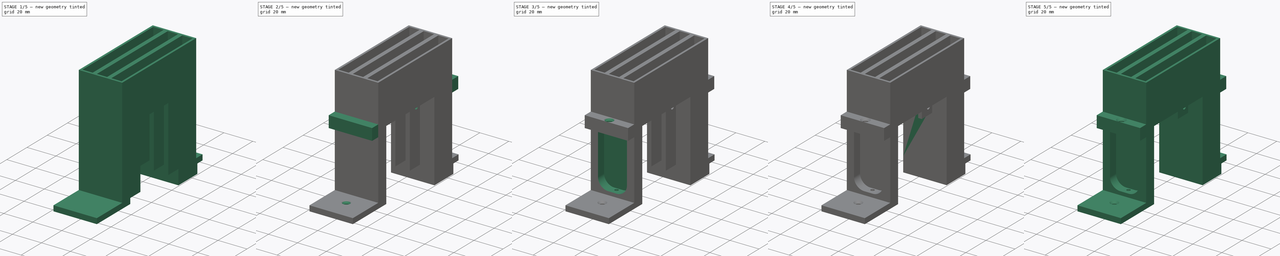
[diagram: build sequence overview — one tinted view per stage of 5, left to right]
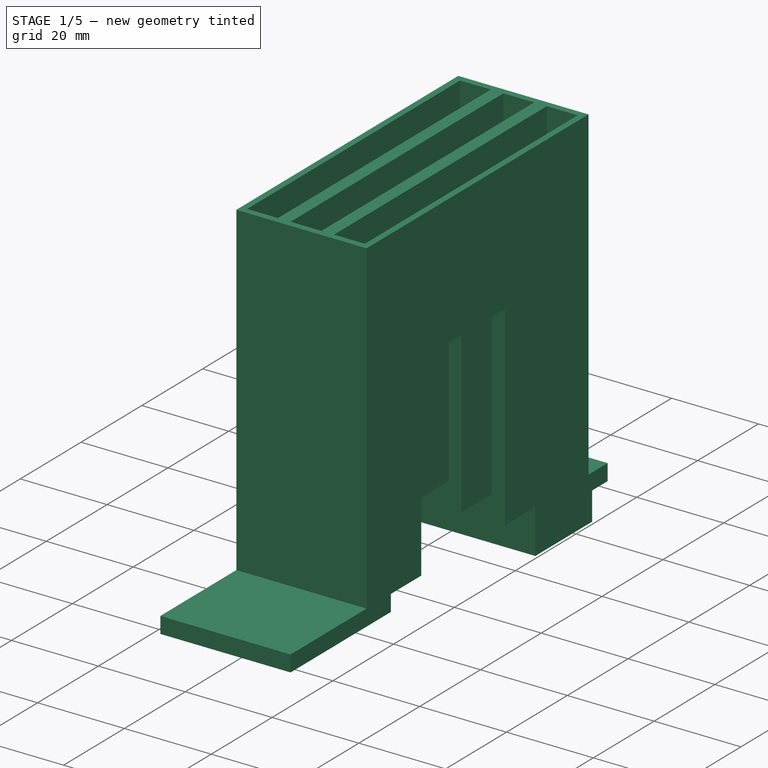
[diagram: stage 1 of 5 — iso view after this stage's code; geometry added in this stage tinted green]
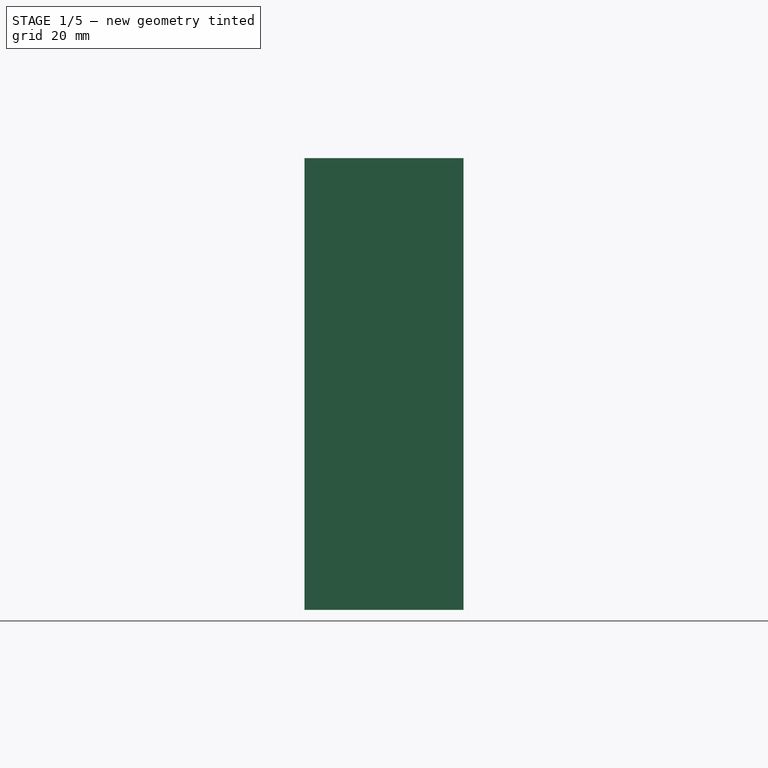
[diagram: stage 1 of 5 — front view after this stage's code; geometry added in this stage tinted green]
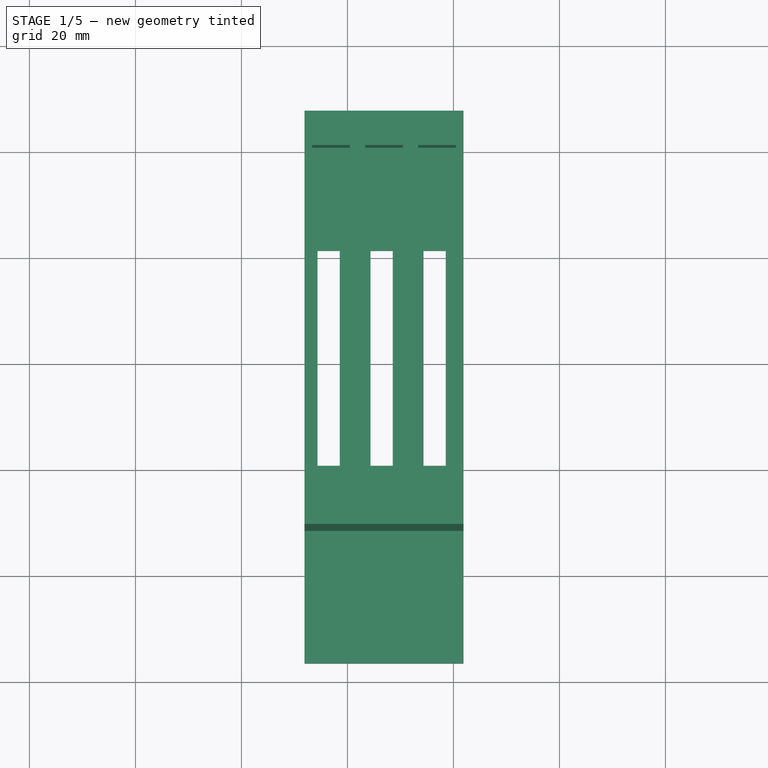
[diagram: stage 1 of 5 — top view after this stage's code; geometry added in this stage tinted green]
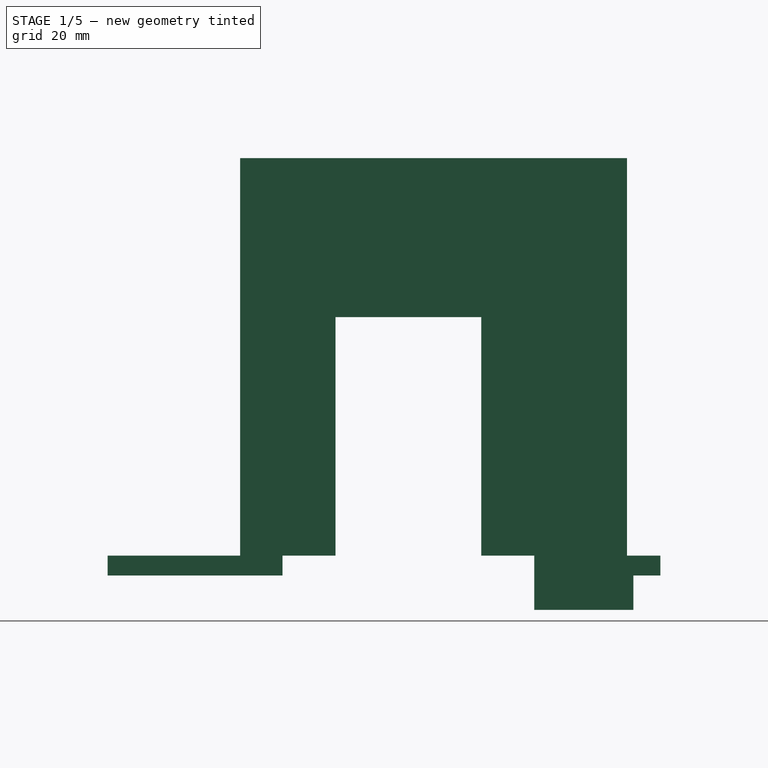
[diagram: stage 1 of 5 — right view after this stage's code; geometry added in this stage tinted green]
FCSTD DOCUMENT  (FreeCAD 1.0R39109 (Git))
Label: ssd holder
License: All rights reserved
LicenseURL: https://en.wikipedia.org/wiki/All_rights_reserved
objects: Sketcher::SketchObject×19, PartDesign::Pocket×7, PartDesign::Hole×6, Part::FeaturePython×6, PartDesign::Pad×5, PartDesign::Fillet×2, PartDesign::LinearPattern×1, PartDesign::Body×1, Part::Extrusion×1, App::DocumentObjectGroup×1
note: 108 computed .brp shape members not serialized (recipe doc carries the construction recipe); baked Part::Feature solids carry a one-line shape summary decoded from their .brp

FEATURE [Sketcher::SketchObject] Sketch
  ArcFitTolerance = 1e-06
  AttachmentSupport = -> [XY_Plane]
  FullyConstrained = false
  MakeInternals = false
  MapMode = 5
  sketch-geometry (8):
    g0: LineSegment StartX=-26.6478 StartY=159.895 StartZ=0 EndX=-26.6478 EndY=89.8951 EndZ=0
    g1: LineSegment StartX=-26.6478 StartY=89.8951 StartZ=0 EndX=-19.5478 EndY=89.8951 EndZ=0
    g2: LineSegment StartX=-19.5478 StartY=89.8951 StartZ=0 EndX=-19.5478 EndY=159.895 EndZ=0
    g3: LineSegment StartX=-19.5478 StartY=159.895 StartZ=0 EndX=-26.6478 EndY=159.895 EndZ=0
    g4: LineSegment StartX=-25.6478 StartY=140.395 StartZ=0 EndX=-25.6478 EndY=99.8951 EndZ=0
    g5: LineSegment StartX=-25.6478 StartY=99.8951 StartZ=0 EndX=-21.4478 EndY=99.8951 EndZ=0
    g6: LineSegment StartX=-21.4478 StartY=99.8951 StartZ=0 EndX=-21.4478 EndY=140.395 EndZ=0
    g7: LineSegment StartX=-21.4478 StartY=140.395 StartZ=0 EndX=-25.6478 EndY=140.395 EndZ=0
  constraints (22):
    c: Coincident(g0,g1)
    c: Coincident(g1,g2)
    c: Coincident(g2,g3)
    c: Coincident(g3,g0)
    c: Vertical(g0)
    c: Vertical(g2)
    c: Horizontal(g1)
    c: Horizontal(g3)
    c: DistanceY(g1,g2) = 70
    c: DistanceX(g0,g1) = 7.1
    c: Coincident(g4,g5)
    c: Coincident(g5,g6)
    c: Coincident(g6,g7)
    c: Coincident(g7,g4)
    c: Vertical(g4)
    c: Vertical(g6)
    c: Horizontal(g5)
    c: Horizontal(g7)
    c: DistanceX(g4,g5) = 4.2
    c: DistanceY(g5,g6) = 40.5
    c: Distance(g1,g5) = 10
    c: Distance(g4,g0) = 1
FEATURE [PartDesign::Pad] Pad  label="base"
  Direction = (0,0,1)
  Length = 0.5
  Length2 = 10
  Profile = -> Sketch
  ReferenceAxis = -> Sketch [N_Axis]
  Refine = true
  Suppressed = false
  Type = 0
FEATURE [Sketcher::SketchObject] Sketch001
  ArcFitTolerance = 1e-06
  AttachmentSupport = -> [Pad]
  ExternalGeometry = -> [Pad]
  FullyConstrained = true
  MakeInternals = false
  MapMode = 5
  Placement = pos=(0,0,0) rot=(1,0,0;3.14159rad)
  expr: Constraints[20] = 1.5
  expr: Constraints[21] = 1.5
  sketch-geometry (8):
    g0: LineSegment StartX=-28.0978 StartY=-88.3951 StartZ=0 EndX=-28.0978 EndY=-161.395 EndZ=0
    g1: LineSegment StartX=-28.0978 StartY=-161.395 StartZ=0 EndX=-18.0978 EndY=-161.395 EndZ=0
    g2: LineSegment StartX=-18.0978 StartY=-161.395 StartZ=0 EndX=-18.0978 EndY=-88.3951 EndZ=0
    g3: LineSegment StartX=-18.0978 StartY=-88.3951 StartZ=0 EndX=-28.0978 EndY=-88.3951 EndZ=0
    g4: LineSegment StartX=-26.6478 StartY=-89.8951 StartZ=0 EndX=-26.6478 EndY=-159.895 EndZ=0
    g5: LineSegment StartX=-26.6478 StartY=-159.895 StartZ=0 EndX=-19.5478 EndY=-159.895 EndZ=0
    g6: LineSegment StartX=-19.5478 StartY=-159.895 StartZ=0 EndX=-19.5478 EndY=-89.8951 EndZ=0
    g7: LineSegment StartX=-19.5478 StartY=-89.8951 StartZ=0 EndX=-26.6478 EndY=-89.8951 EndZ=0
  constraints (22):
    c: Coincident(g0,g1)
    c: Coincident(g1,g2)
    c: Coincident(g2,g3)
    c: Coincident(g3,g0)
    c: Vertical(g0)
    c: Vertical(g2)
    c: Horizontal(g1)
    c: Horizontal(g3)
    c: Coincident(g4,g5)
    c: Coincident(g5,g6)
    c: Coincident(g6,g7)
    c: Coincident(g7,g4)
    c: Vertical(g4)
    c: Vertical(g6)
    c: Horizontal(g5)
    c: Horizontal(g7)
    c: Coincident(g4,g-4)
    c: Coincident(g5,g-6)
    c: DistanceX(g6,g2) = 1.45
    c: DistanceX(g0,g4) = 1.45
    c: DistanceY(g1,g5) = 1.5
    c: DistanceY(g4,g0) = 1.5
FEATURE [PartDesign::Pad] Pad001  label="walls"
  BaseFeature = -> Pad
  Direction = (0,0,-1)
  Length = 30
  Length2 = 0
  Profile = -> Sketch001
  ReferenceAxis = -> Sketch001 [N_Axis]
  Refine = true
  Reversed = true
  Suppressed = false
  Type = 0
FEATURE [Sketcher::SketchObject] Sketch002
  ArcFitTolerance = 1e-06
  AttachmentSupport = -> [Pad001]
  ExternalGeometry = -> [Pad001]
  FullyConstrained = true
  MakeInternals = false
  MapMode = 5
  Placement = pos=(0,0,0) rot=(1,0,0;3.14159rad)
  sketch-geometry (12):
    g0: LineSegment StartX=-28.0978 StartY=-88.3951 StartZ=0 EndX=-28.0978 EndY=-96.3951 EndZ=0
    g1: LineSegment StartX=-28.0978 StartY=-96.3951 StartZ=0 EndX=-20.5978 EndY=-96.3951 EndZ=0
    g2: LineSegment StartX=-20.5978 StartY=-96.3951 StartZ=0 EndX=-20.5978 EndY=-106.395 EndZ=0
    g3: LineSegment StartX=-20.5978 StartY=-106.395 StartZ=0 EndX=-18.0978 EndY=-106.395 EndZ=0
    g4: LineSegment StartX=-18.0978 StartY=-106.395 StartZ=0 EndX=-18.0978 EndY=-88.3951 EndZ=0
    g5: LineSegment StartX=-18.0978 StartY=-88.3951 StartZ=0 EndX=-28.0978 EndY=-88.3951 EndZ=0
    g6: LineSegment StartX=-28.0978 StartY=-161.395 StartZ=0 EndX=-18.0978 EndY=-161.395 EndZ=0
    g7: LineSegment StartX=-18.0978 StartY=-161.395 StartZ=0 EndX=-18.0978 EndY=-133.895 EndZ=0
    g8: LineSegment StartX=-18.0978 StartY=-133.895 StartZ=0 EndX=-20.5978 EndY=-133.895 EndZ=0
    g9: LineSegment StartX=-20.5978 StartY=-133.895 StartZ=0 EndX=-20.5978 EndY=-143.895 EndZ=0
    g10: LineSegment StartX=-20.5978 StartY=-143.895 StartZ=0 EndX=-28.0978 EndY=-143.895 EndZ=0
    g11: LineSegment StartX=-28.0978 StartY=-143.895 StartZ=0 EndX=-28.0978 EndY=-161.395 EndZ=0
  constraints (32):
    c: Coincident(g-4,g0)
    c: PointOnObject(g0,g-4)
    c: Coincident(g0,g1)
    c: Horizontal(g1)
    c: Coincident(g1,g2)
    c: Vertical(g2)
    c: Coincident(g2,g3)
    c: PointOnObject(g3,g-5)
    c: Horizontal(g3)
    c: Coincident(g3,g4)
    c: Coincident(g4,g-5)
    c: Coincident(g4,g5)
    c: Coincident(g5,g0)
    c: DistanceX(g1,g1) = 7.5
    c: Distance(g1,g2) = 10
    c: DistanceY(g-7,g0) = 3.5
    c: Coincident(g-6,g6)
    c: Coincident(g6,g-6)
    c: Coincident(g6,g7)
    c: PointOnObject(g7,g-5)
    c: Coincident(g7,g8)
    c: Coincident(g8,g9)
    c: Vertical(g9)
    c: Coincident(g9,g10)
    c: PointOnObject(g10,g-4)
    c: Horizontal(g10)
    c: Coincident(g10,g11)
    c: Coincident(g11,g6)
    c: Horizontal(g8)
    c: DistanceY(g10,g-8) = 3.5
    c: DistanceX(g10,g9) = 7.5
    c: DistanceY(g9,g7) = 10
FEATURE [PartDesign::Pad] Pad002  label="feet"
  BaseFeature = -> Pad001
  Direction = (0,0,-1)
  Length = 45
  Length2 = 10
  Profile = -> Sketch002
  ReferenceAxis = -> Sketch002 [N_Axis]
  Refine = true
  Suppressed = false
  Type = 0
FEATURE [Sketcher::SketchObject] Sketch003
  ArcFitTolerance = 1e-06
  AttachmentSupport = -> [Pad002]
  ExternalGeometry = -> [Pad002]
  FullyConstrained = true
  MakeInternals = false
  MapMode = 5
  Placement = pos=(-20.5978,0,0) rot=(0.57735,-0.57735,-0.57735;2.0944rad)
  sketch-geometry (2):
    g0: Circle CenterX=-140.395 CenterY=-7.7 CenterZ=0 NormalX=0 NormalY=0 NormalZ=1 AngleXU=0 Radius=1.25
    g1: Circle CenterX=-99.8951 CenterY=-7.7 CenterZ=0 NormalX=0 NormalY=0 NormalZ=1 AngleXU=0 Radius=1.25
  constraints (6):
    c: Diameter(g0) = 2.5
    c: Diameter(g1) = 2.5
    c: DistanceX(g-3,g0) = 3.5
    c: Distance(g1,g-4) = 3.5
    c: DistanceY(g0,g-6) = 7.7
    c: DistanceY(g1,g-5) = 7.7
FEATURE [PartDesign::LinearPattern] LinearPattern
  BaseFeature = -> Pad002
  Direction = -> X_Axis
  Length = 20
  Mode = 0
  Occurrences = 3
  Offset = 10
  Refine = true
  Suppressed = false
  TransformMode = 1
FEATURE [Sketcher::SketchObject] Sketch004
  ArcFitTolerance = 1e-06
  AttachmentSupport = -> [LinearPattern]
  ExternalGeometry = -> [LinearPattern]
  FullyConstrained = true
  MakeInternals = false
  MapMode = 5
  Placement = pos=(-28.0978,0,0) rot=(0.57735,-0.57735,-0.57735;2.0944rad)
  expr: Constraints[24] = 17.5 + 6.3
  expr: Constraints[8] = 8 + 25
  sketch-geometry (11):
    g0: LineSegment StartX=-96.3951 StartY=-45 StartZ=0 EndX=-63.3951 EndY=-45 EndZ=0
    g1: LineSegment StartX=-63.3951 StartY=-45 StartZ=0 EndX=-63.3951 EndY=-48.75 EndZ=0
    g2: LineSegment StartX=-63.3951 StartY=-48.75 StartZ=0 EndX=-96.3951 EndY=-48.75 EndZ=0
    g3: LineSegment StartX=-96.3951 StartY=-48.75 StartZ=0 EndX=-96.3951 EndY=-45 EndZ=0
    g4: LineSegment StartX=-143.895 StartY=-45 StartZ=0 EndX=-161.395 EndY=-45 EndZ=0
    g5: LineSegment StartX=-161.395 StartY=-45 StartZ=0 EndX=-167.695 EndY=-45 EndZ=0
    g6: LineSegment StartX=-167.695 StartY=-45 StartZ=0 EndX=-167.695 EndY=-48.75 EndZ=0
    g7: LineSegment StartX=-167.695 StartY=-48.75 StartZ=0 EndX=-162.595 EndY=-48.75 EndZ=0
    g8: LineSegment StartX=-162.595 StartY=-48.75 StartZ=0 EndX=-162.595 EndY=-55.25 EndZ=0
    g9: LineSegment StartX=-162.595 StartY=-55.25 StartZ=0 EndX=-143.895 EndY=-55.25 EndZ=0
    g10: LineSegment StartX=-143.895 StartY=-55.25 StartZ=0 EndX=-143.895 EndY=-45 EndZ=0
  constraints (30):
    c: Coincident(g-3,g0)
    c: Horizontal(g0)
    c: Coincident(g0,g1)
    c: Coincident(g1,g2)
    c: Horizontal(g2)
    c: Coincident(g3,g0)
    c: Vertical(g3)
    c: Vertical(g1)
    c: DistanceX(g0,g0) = 33
    c: Coincident(g-4,g4)
    c: Coincident(g4,g-4)
    c: Coincident(g4,g5)
    c: Horizontal(g5)
    c: Coincident(g5,g6)
    c: Coincident(g6,g7)
    c: Horizontal(g7)
    c: Coincident(g7,g8)
    c: Coincident(g8,g9)
    c: Horizontal(g9)
    c: Coincident(g9,g10)
    c: Coincident(g10,g4)
    c: Vertical(g10)
    c: Vertical(g8)
    c: Vertical(g6)
    c: DistanceX(g5,g4) = 23.8
    c: DistanceX(g6,g7) = 5.1
    c: DistanceY(g9,g4) = 10.25
    c: DistanceY(g8,g7) = 6.5
    c: Coincident(g2,g3)
    c: DistanceY(g1,g0) = 3.75
FEATURE [PartDesign::Pad] Pad003  label="bottom screw holes flange"
  BaseFeature = -> LinearPattern
  Direction = (-1,0,0)
  Length = 10
  Length2 = 10
  Profile = -> Sketch004
  ReferenceAxis = -> Sketch004 [N_Axis]
  Refine = true
  Reversed = true
  Suppressed = false
  Type = 3
  UpToFace = -> LinearPattern [Face1]
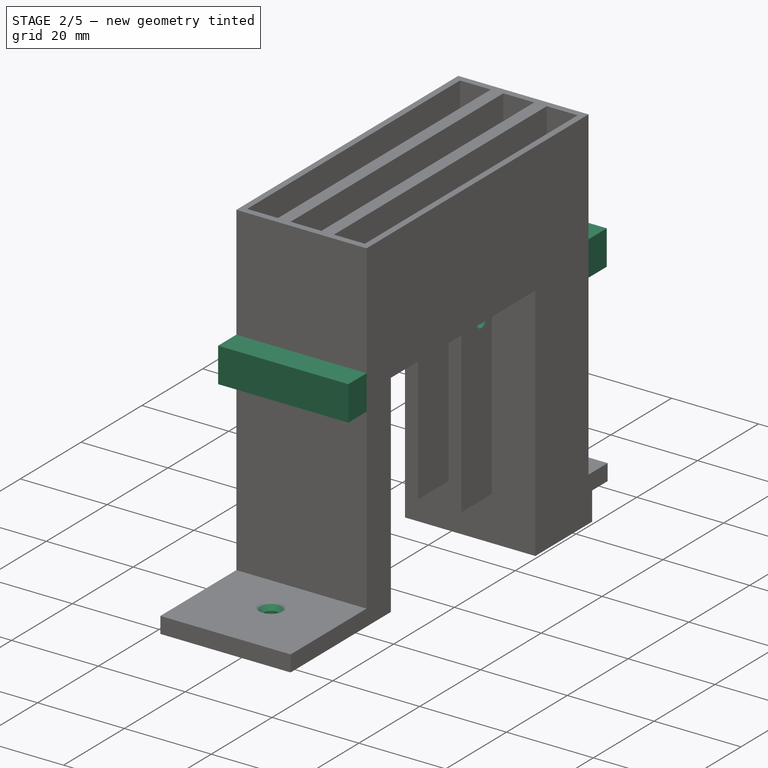
[diagram: stage 2 of 5 — iso view after this stage's code; geometry added in this stage tinted green]
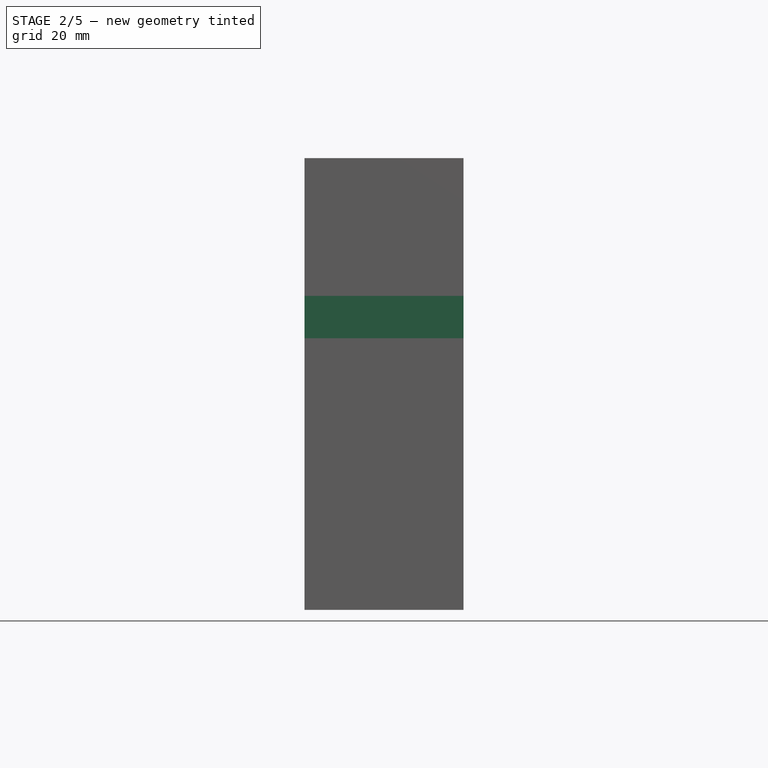
[diagram: stage 2 of 5 — front view after this stage's code; geometry added in this stage tinted green]
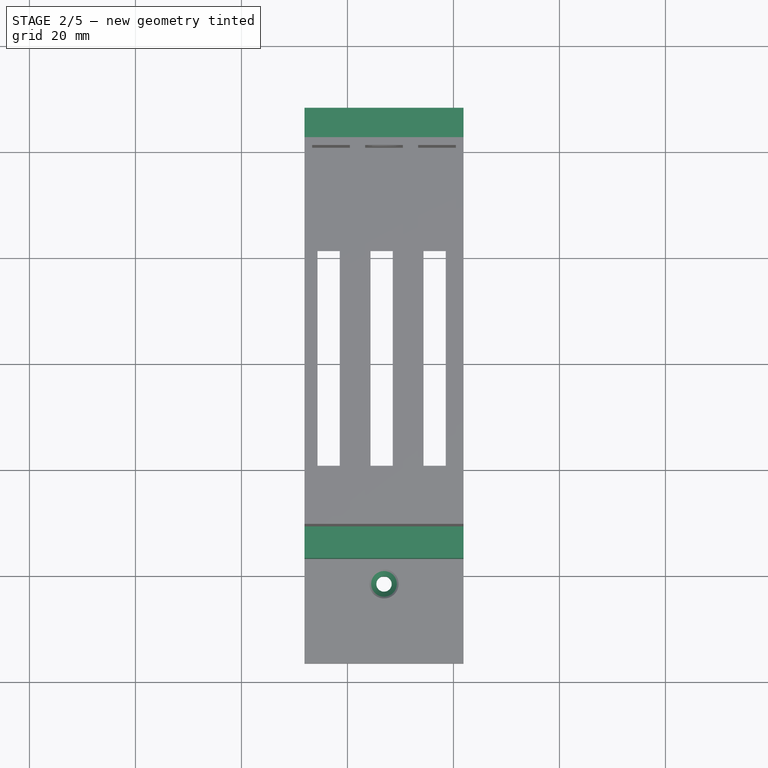
[diagram: stage 2 of 5 — top view after this stage's code; geometry added in this stage tinted green]
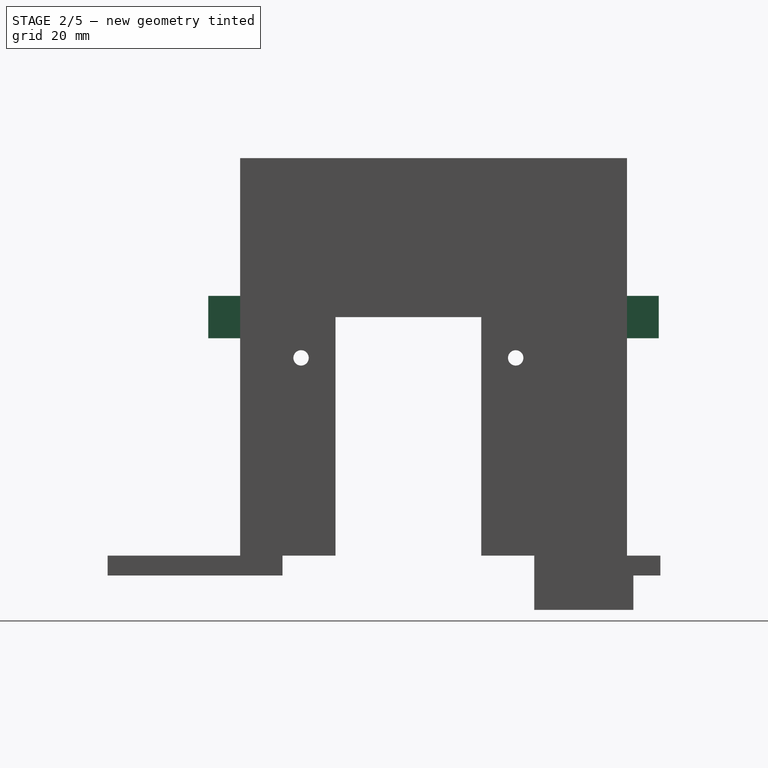
[diagram: stage 2 of 5 — right view after this stage's code; geometry added in this stage tinted green]
FEATURE [Sketcher::SketchObject] Sketch005
  ArcFitTolerance = 1e-06
  AttachmentSupport = -> [Pad003]
  ExternalGeometry = -> [Pad003]
  FullyConstrained = true
  MakeInternals = false
  MapMode = 5
  Placement = pos=(0,0,-45) rot=(0,0,1;0rad)
  sketch-geometry (3):
    g0: Circle CenterX=-13.0978 CenterY=165.195 CenterZ=0 NormalX=0 NormalY=0 NormalZ=1 AngleXU=0 Radius=1.25
    g1: Circle CenterX=-13.0978 CenterY=78.3951 CenterZ=0 NormalX=0 NormalY=0 NormalZ=1 AngleXU=0 Radius=1.25
    g2: GeomPoint [constr] X=-13.0978 Y=63.3951 Z=0
  constraints (7):
    c: Diameter(g0) = 2.5
    c: Diameter(g1) = 2.5
    c: Symmetric(g-3,g-3,g2)
    c: Vertical(g1,g2)
    c: DistanceY(g2,g1) = 15
    c: Distance(g0,g-4) = 2.5
    c: Vertical(g0,g1)
FEATURE [PartDesign::Hole] Hole001  label="bottom screw holes"
  BaseFeature = -> Pad003
  CustomThreadClearance = 0
  Depth = 255.8
  DepthType = 1
  Diameter = 2.9
  DrillForDepth = false
  DrillPoint = 1
  DrillPointAngle = 118
  HoleCutCountersinkAngle = 90
  HoleCutCustomValues = false
  HoleCutDepth = 0
  HoleCutDiameter = 5.5
  HoleCutType = 2
  ModelThread = false
  Profile = -> Sketch005
  Refine = true
  Suppressed = false
  Tapered = false
  TaperedAngle = 90
  ThreadClass = 0
  ThreadDepth = 255.8
  ThreadDepthType = 0
  ThreadDirection = 0
  ThreadFit = 0
  ThreadSize = 8
  ThreadType = 1
  Threaded = false
  UseCustomThreadClearance = false
FEATURE [Sketcher::SketchObject] Sketch006
  ArcFitTolerance = 1e-06
  AttachmentSupport = -> [Hole001]
  ExternalGeometry = -> [Hole001]
  FullyConstrained = true
  MakeInternals = false
  MapMode = 5
  Placement = pos=(0,159.895,0) rot=(1,0,0;1.5708rad)
  sketch-geometry (2):
    g0: Circle CenterX=-13.0978 CenterY=21 CenterZ=0 NormalX=0 NormalY=0 NormalZ=1 AngleXU=0 Radius=1.5
    g1: GeomPoint [constr] X=-13.0978 Y=30 Z=0
  constraints (4):
    c: Diameter(g0) = 3
    c: Symmetric(g-3,g-3,g1)
    c: Vertical(g0,g1)
    c: Distance(g0,g-3) = 9
FEATURE [PartDesign::Hole] Hole002  label="fan carrier hole"
  BaseFeature = -> Hole001
  CustomThreadClearance = 0
  Depth = 25
  DepthType = 0
  Diameter = 3.4
  DrillForDepth = false
  DrillPoint = 1
  DrillPointAngle = 118
  HoleCutCountersinkAngle = 90
  HoleCutCustomValues = false
  HoleCutDepth = 0
  HoleCutDiameter = 6.1
  HoleCutType = 2
  ModelThread = false
  Profile = -> Sketch006
  Refine = true
  Suppressed = false
  Tapered = false
  TaperedAngle = 90
  ThreadClass = 0
  ThreadDepth = 25
  ThreadDepthType = 0
  ThreadDirection = 0
  ThreadFit = 0
  ThreadSize = 9
  ThreadType = 1
  Threaded = false
  UseCustomThreadClearance = false
FEATURE [PartDesign::Hole] Hole  label="connector mount holes"
  BaseFeature = -> Hole002
  CustomThreadClearance = 0
  Depth = 255.8
  DepthType = 1
  Diameter = 2.9
  DrillForDepth = false
  DrillPoint = 1
  DrillPointAngle = 118
  HoleCutCountersinkAngle = 90
  HoleCutCustomValues = false
  HoleCutDepth = 0
  HoleCutDiameter = 5.5
  HoleCutType = 0
  ModelThread = false
  Profile = -> Sketch003
  Refine = true
  Suppressed = false
  Tapered = false
  TaperedAngle = 90
  ThreadClass = 0
  ThreadDepth = 255.8
  ThreadDepthType = 0
  ThreadDirection = 0
  ThreadFit = 0
  ThreadSize = 8
  ThreadType = 1
  Threaded = false
  UseCustomThreadClearance = false
FEATURE [Sketcher::SketchObject] Sketch007
  ArcFitTolerance = 1e-06
  AttachmentSupport = -> [Hole]
  ExternalGeometry = -> [Hole]
  FullyConstrained = true
  MakeInternals = false
  MapMode = 5
  Placement = pos=(1.9022,0,0) rot=(0.57735,0.57735,0.57735;2.0944rad)
  sketch-geometry (8):
    g0: LineSegment StartX=96.3951 StartY=0 StartZ=0 EndX=96.3951 EndY=-45 EndZ=0
    g1: LineSegment StartX=96.3951 StartY=-45 StartZ=0 EndX=106.395 EndY=-45 EndZ=0
    g2: LineSegment StartX=106.395 StartY=-45 StartZ=0 EndX=106.395 EndY=0 EndZ=0
    g3: LineSegment StartX=106.395 StartY=0 StartZ=0 EndX=96.3951 EndY=0 EndZ=0
    g4: LineSegment StartX=143.895 StartY=0 StartZ=0 EndX=133.895 EndY=0 EndZ=0
    g5: LineSegment StartX=133.895 StartY=0 StartZ=0 EndX=133.895 EndY=-45 EndZ=0
    g6: LineSegment StartX=133.895 StartY=-45 StartZ=0 EndX=143.895 EndY=-45 EndZ=0
    g7: LineSegment StartX=143.895 StartY=-45 StartZ=0 EndX=143.895 EndY=0 EndZ=0
  constraints (20):
    c: Coincident(g0,g1)
    c: Coincident(g1,g2)
    c: Coincident(g2,g3)
    c: Coincident(g3,g0)
    c: Vertical(g0)
    c: Vertical(g2)
    c: Horizontal(g1)
    c: Horizontal(g3)
    c: Coincident(g0,g-3)
    c: Coincident(g1,g-4)
    c: Coincident(g4,g5)
    c: Coincident(g5,g6)
    c: Coincident(g6,g7)
    c: Coincident(g7,g4)
    c: Horizontal(g4)
    c: Horizontal(g6)
    c: Vertical(g5)
    c: Vertical(g7)
    c: Coincident(g4,g-6)
    c: Coincident(g5,g-5)
FEATURE [PartDesign::Pocket] Pocket
  BaseFeature = -> Hole
  Direction = (-1,0,0)
  Length = 2.5
  Length2 = 5
  Profile = -> Sketch007
  ReferenceAxis = -> Sketch007 [N_Axis]
  Refine = true
  Suppressed = false
  Type = 0
FEATURE [Sketcher::SketchObject] Sketch011
  ArcFitTolerance = 1e-06
  AttachmentSupport = -> [Pocket]
  ExternalGeometry = -> [Pocket]
  FullyConstrained = true
  MakeInternals = false
  MapMode = 5
  Placement = pos=(0,0,-48.75) rot=(1,0,0;3.14159rad)
  sketch-geometry (5):
    g0: LineSegment StartX=-18.0978 StartY=-96.3951 StartZ=0 EndX=-8.0978 EndY=-96.3951 EndZ=0
    g1: LineSegment StartX=-8.0978 StartY=-96.3951 StartZ=0 EndX=-8.0978 EndY=-86.3951 EndZ=0
    g2: LineSegment StartX=-8.0978 StartY=-86.3951 StartZ=0 EndX=-18.0978 EndY=-86.3951 EndZ=0
    g3: LineSegment StartX=-18.0978 StartY=-86.3951 StartZ=0 EndX=-18.0978 EndY=-96.3951 EndZ=0
    g4: GeomPoint [constr] X=-13.0978 Y=-96.3951 Z=0
  constraints (12):
    c: Coincident(g0,g1)
    c: Coincident(g1,g2)
    c: Coincident(g2,g3)
    c: Coincident(g3,g0)
    c: Horizontal(g0)
    c: Horizontal(g2)
    c: Vertical(g1)
    c: Vertical(g3)
    c: Equal(g3,g2)
    c: DistanceX(g2,g2) = 10
    c: Symmetric(g-4,g-4,g4)
    c: Symmetric(g0,g0,g4)
FEATURE [PartDesign::Pocket] Pocket001  label="screw head pocket"
  BaseFeature = -> Pocket
  Direction = (0,0,1)
  Length = 1.1
  Length2 = 5
  Profile = -> Sketch011
  ReferenceAxis = -> Sketch011 [N_Axis]
  Refine = true
  Suppressed = false
  Type = 0
FEATURE [Sketcher::SketchObject] Sketch012
  ArcFitTolerance = 1e-06
  AttachmentSupport = -> [Pocket001]
  ExternalGeometry = -> [Pocket001]
  FullyConstrained = true
  MakeInternals = false
  MapMode = 5
  Placement = pos=(-28.0978,0,0) rot=(0.57735,-0.57735,-0.57735;2.0944rad)
  sketch-geometry (10):
    g0: LineSegment StartX=-161.395 StartY=4 StartZ=0 EndX=-167.395 EndY=4 EndZ=0
    g1: LineSegment StartX=-167.395 StartY=4 StartZ=0 EndX=-167.395 EndY=-4 EndZ=0
    g2: LineSegment StartX=-167.395 StartY=-4 StartZ=0 EndX=-161.395 EndY=-4 EndZ=0
    g3: LineSegment StartX=-161.395 StartY=-4 StartZ=0 EndX=-161.395 EndY=4 EndZ=0
    g4: LineSegment StartX=-88.3951 StartY=4 StartZ=0 EndX=-88.3951 EndY=-4 EndZ=0
    g5: LineSegment StartX=-88.3951 StartY=-4 StartZ=0 EndX=-82.3951 EndY=-4 EndZ=0
    g6: LineSegment StartX=-82.3951 StartY=-4 StartZ=0 EndX=-82.3951 EndY=4 EndZ=0
    g7: LineSegment StartX=-82.3951 StartY=4 StartZ=0 EndX=-88.3951 EndY=4 EndZ=0
    g8: GeomPoint [constr] X=-88.3951 Y=0 Z=0
    g9: GeomPoint [constr] X=-161.395 Y=0 Z=0
  constraints (26):
    c: Coincident(g0,g1)
    c: Coincident(g1,g2)
    c: Coincident(g2,g3)
    c: Coincident(g3,g0)
    c: Horizontal(g0)
    c: Horizontal(g2)
    c: Vertical(g1)
    c: Vertical(g3)
    c: Coincident(g4,g5)
    c: Coincident(g5,g6)
    c: Coincident(g6,g7)
    c: Coincident(g7,g4)
    c: Vertical(g4)
    c: Vertical(g6)
    c: Horizontal(g5)
    c: Horizontal(g7)
    c: Equal(g1,g6)
    c: Equal(g5,g2)
    c: PointOnObject(g0,g-5)
    c: PointOnObject(g4,g-3)
    c: PointOnObject(g8,g-1)
    c: PointOnObject(g9,g-1)
    c: Symmetric(g0,g2,g9)
    c: Symmetric(g4,g4,g8)
    c: Distance(g6,g6) = 8
    c: DistanceX(g5,g5) = 6
FEATURE [PartDesign::Pad] Pad004
  BaseFeature = -> Pocket001
  Direction = (-1,0,0)
  Length = 10
  Length2 = 10
  Profile = -> Sketch012
  ReferenceAxis = -> Sketch012 [N_Axis]
  Refine = true
  Reversed = true
  Suppressed = false
  Type = 1
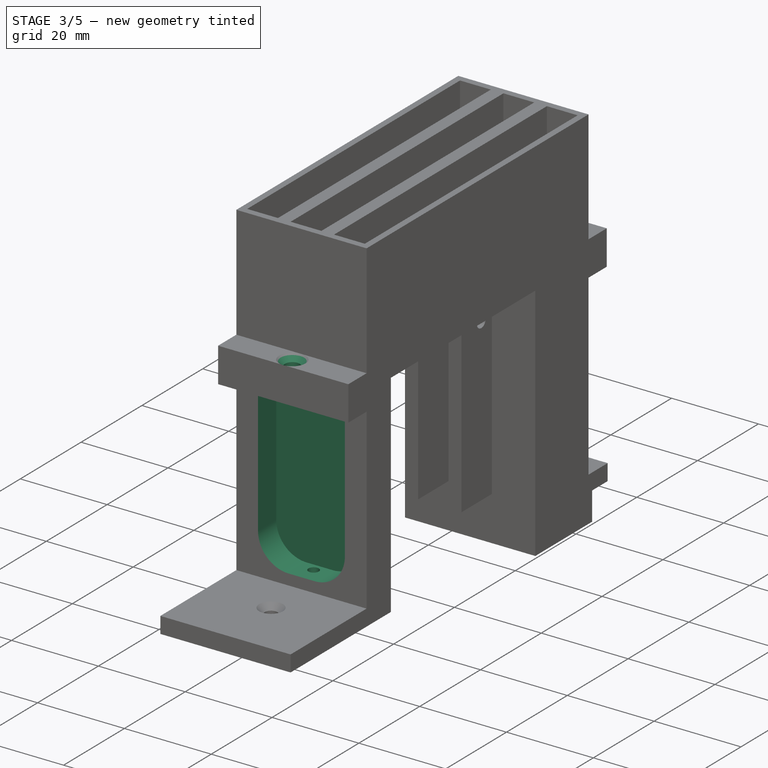
[diagram: stage 3 of 5 — iso view after this stage's code; geometry added in this stage tinted green]
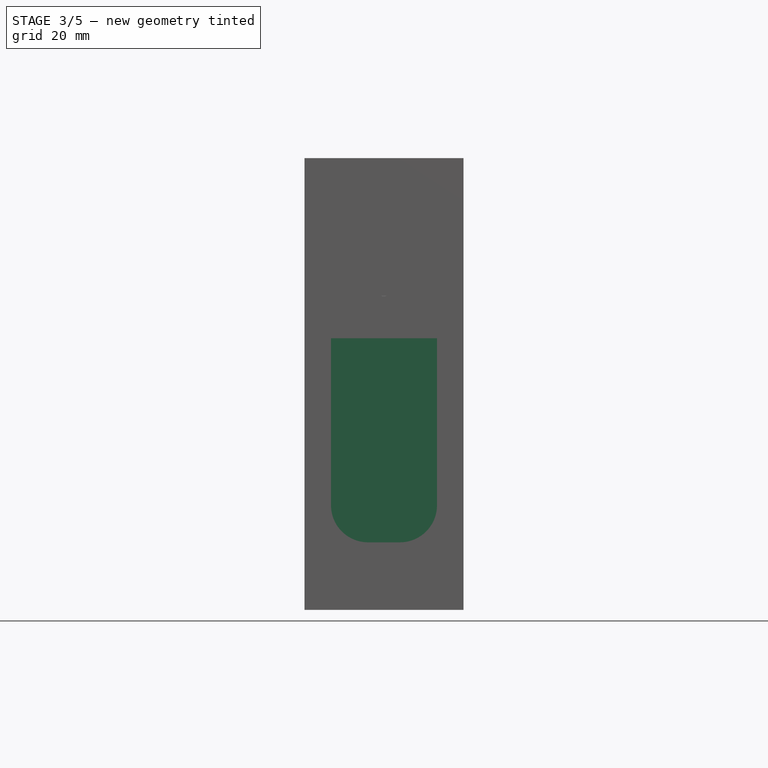
[diagram: stage 3 of 5 — front view after this stage's code; geometry added in this stage tinted green]
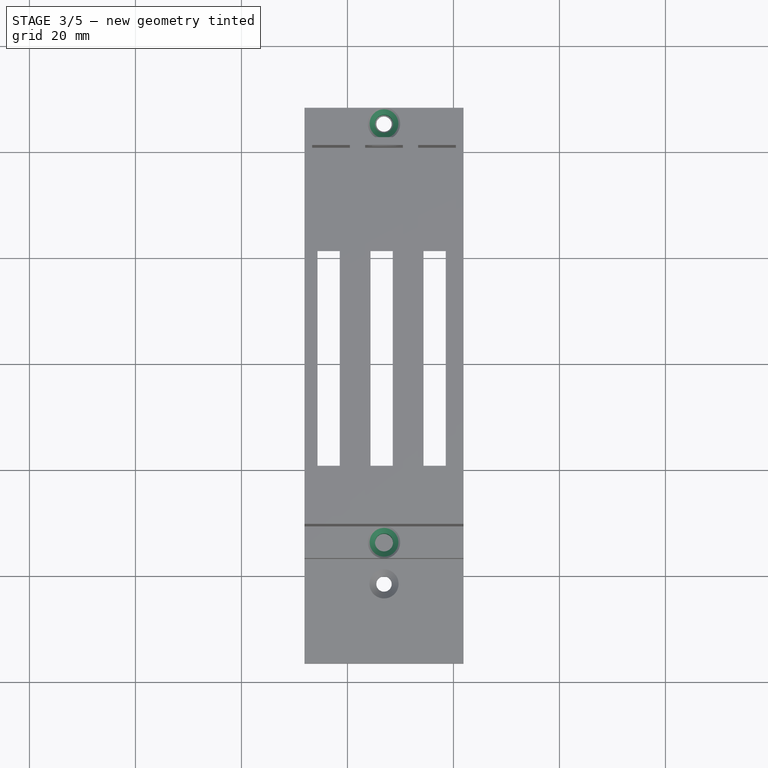
[diagram: stage 3 of 5 — top view after this stage's code; geometry added in this stage tinted green]
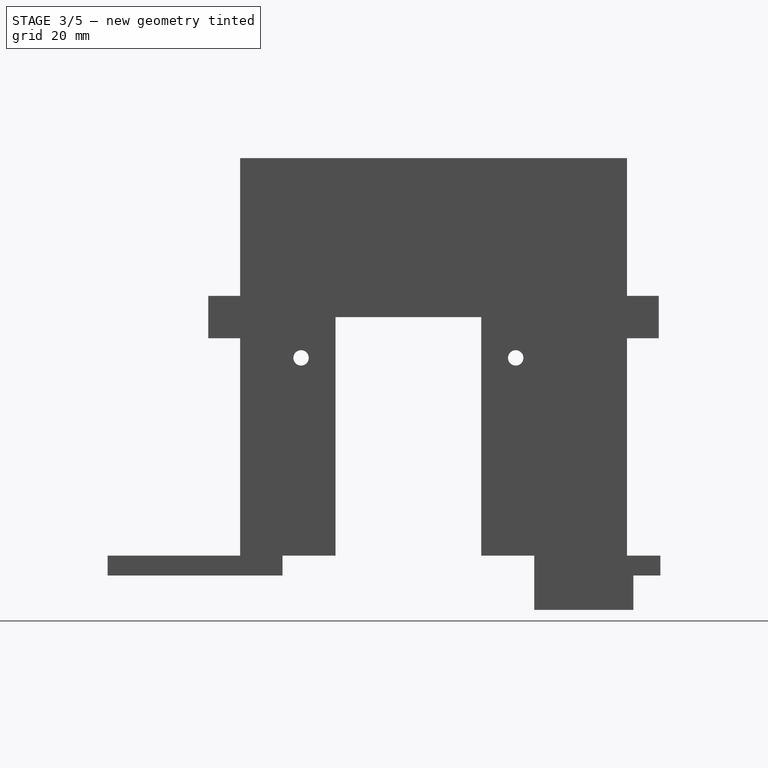
[diagram: stage 3 of 5 — right view after this stage's code; geometry added in this stage tinted green]
FEATURE [Sketcher::SketchObject] Sketch013
  ArcFitTolerance = 1e-06
  AttachmentSupport = -> [Pad004]
  ExternalGeometry = -> [Pad004]
  FullyConstrained = true
  MakeInternals = false
  MapMode = 5
  Placement = pos=(0,0,4) rot=(0,0,1;0rad)
  sketch-geometry (2):
    g0: Circle CenterX=-13.0978 CenterY=85.3951 CenterZ=0 NormalX=0 NormalY=0 NormalZ=1 AngleXU=0 Radius=1.5
    g1: Circle CenterX=-13.0978 CenterY=164.395 CenterZ=0 NormalX=0 NormalY=0 NormalZ=1 AngleXU=0 Radius=1.5
  constraints (4):
    c: Symmetric(g-3,g-4,g1)
    c: Symmetric(g-6,g-5,g0)
    c: Equal(g0,g1)
    c: Diameter(g1) = 3
FEATURE [PartDesign::Hole] Hole003
  BaseFeature = -> Pad004
  CustomThreadClearance = 0
  Depth = 8
  DepthType = 0
  Diameter = 3.4
  DrillForDepth = false
  DrillPoint = 0
  DrillPointAngle = 118
  HoleCutCountersinkAngle = 90
  HoleCutCustomValues = false
  HoleCutDepth = 0
  HoleCutDiameter = 6.1
  HoleCutType = 2
  ModelThread = false
  Profile = -> Sketch013
  Refine = true
  Suppressed = false
  Tapered = false
  TaperedAngle = 90
  ThreadClass = 0
  ThreadDepth = 8
  ThreadDepthType = 0
  ThreadDirection = 0
  ThreadFit = 0
  ThreadSize = 9
  ThreadType = 1
  Threaded = false
  UseCustomThreadClearance = false
FEATURE [Sketcher::SketchObject] Sketch014
  ArcFitTolerance = 1e-06
  AttachmentSupport = -> [Hole003]
  FullyConstrained = true
  MakeInternals = false
  MapMode = 5
  Placement = pos=(0,0,-47.65) rot=(1,0,0;3.14159rad)
  sketch-geometry (1):
    g0: Circle CenterX=-13.0978 CenterY=-92.3951 CenterZ=0 NormalX=0 NormalY=0 NormalZ=1 AngleXU=0 Radius=1
  constraints (3):
    c: Diameter(g0) = 2
    c: DistanceY(g-3,g0) = 4
    c: Vertical(g0,g-4)
FEATURE [PartDesign::Hole] Hole004
  BaseFeature = -> Hole003
  CustomThreadClearance = 0
  Depth = 10
  DepthType = 0
  Diameter = 2.4
  DrillForDepth = false
  DrillPoint = 1
  DrillPointAngle = 118
  HoleCutCountersinkAngle = 90
  HoleCutCustomValues = false
  HoleCutDepth = 1.1
  HoleCutDiameter = 5.5
  HoleCutType = 1
  ModelThread = false
  Profile = -> Sketch014
  Refine = true
  Suppressed = false
  Tapered = false
  TaperedAngle = 90
  ThreadClass = 0
  ThreadDepth = 10
  ThreadDepthType = 0
  ThreadDirection = 0
  ThreadFit = 0
  ThreadSize = 6
  ThreadType = 1
  Threaded = false
  UseCustomThreadClearance = false
FEATURE [Sketcher::SketchObject] Sketch015
  ArcFitTolerance = 1e-06
  AttachmentSupport = -> [Hole004]
  ExternalGeometry = -> [Hole004]
  FullyConstrained = true
  MakeInternals = false
  MapMode = 5
  Placement = pos=(0,88.3951,0) rot=(1,0,0;1.5708rad)
  sketch-geometry (6):
    g0: LineSegment StartX=-23.0978 StartY=-4 StartZ=0 EndX=-23.0978 EndY=-42.5 EndZ=0
    g1: LineSegment StartX=-23.0978 StartY=-42.5 StartZ=0 EndX=-3.0978 EndY=-42.5 EndZ=0
    g2: LineSegment StartX=-3.0978 StartY=-42.5 StartZ=0 EndX=-3.0978 EndY=-4 EndZ=0
    g3: LineSegment StartX=-3.0978 StartY=-4 StartZ=0 EndX=-23.0978 EndY=-4 EndZ=0
    g4: GeomPoint [constr] X=-13.0978 Y=-42.5 Z=0
    g5: GeomPoint [constr] X=-13.0978 Y=-45 Z=0
  constraints (14):
    c: Coincident(g0,g1)
    c: Coincident(g1,g2)
    c: Coincident(g2,g3)
    c: Coincident(g3,g0)
    c: Vertical(g0)
    c: Vertical(g2)
    c: Horizontal(g1)
    c: Horizontal(g3)
    c: Symmetric(g1,g0,g4)
    c: DistanceX(g1,g1) = 20
    c: PointOnObject(g2,g-3)
    c: Symmetric(g-4,g-4,g5)
    c: Vertical(g4,g5)
    c: Distance(g-4,g1) = 2.5
FEATURE [PartDesign::Pocket] Pocket002
  BaseFeature = -> Hole004
  Direction = (0,1,-2e-16)
  Length = 6
  Length2 = 5
  Profile = -> Sketch015
  ReferenceAxis = -> Sketch015 [N_Axis]
  Refine = true
  Suppressed = false
  Type = 0
FEATURE [PartDesign::Fillet] Fillet
  Base = -> Pocket002 [Edge260,Edge263]
  BaseFeature = -> Pocket002
  Radius = 7
  Refine = true
  SupportTransform = false
  Suppressed = false
  UseAllEdges = false
FEATURE [Sketcher::SketchObject] Sketch016
  ArcFitTolerance = 1e-06
  AttachmentSupport = -> [Fillet]
  ExternalGeometry = -> [Fillet]
  FullyConstrained = true
  MakeInternals = false
  MapMode = 5
  Placement = pos=(0,0,-55.25) rot=(1,0,0;3.14159rad)
  sketch-geometry (1):
    g0: Circle CenterX=-13.0978 CenterY=-153.245 CenterZ=0 NormalX=0 NormalY=0 NormalZ=1 AngleXU=0 Radius=1
  constraints (2):
    c: Symmetric(g-4,g-3,g0)
    c: Diameter(g0) = 2
FEATURE [PartDesign::Hole] Hole005
  BaseFeature = -> Fillet
  CustomThreadClearance = 0
  Depth = 22
  DepthType = 0
  Diameter = 2.9
  DrillForDepth = false
  DrillPoint = 0
  DrillPointAngle = 118
  HoleCutCountersinkAngle = 90
  HoleCutCustomValues = false
  HoleCutDepth = 1.1
  HoleCutDiameter = 5.5
  HoleCutType = 1
  ModelThread = false
  Profile = -> Sketch016
  Refine = true
  Suppressed = false
  Tapered = false
  TaperedAngle = 90
  ThreadClass = 0
  ThreadDepth = 22
  ThreadDepthType = 0
  ThreadDirection = 0
  ThreadFit = 0
  ThreadSize = 8
  ThreadType = 1
  Threaded = false
  UseCustomThreadClearance = false
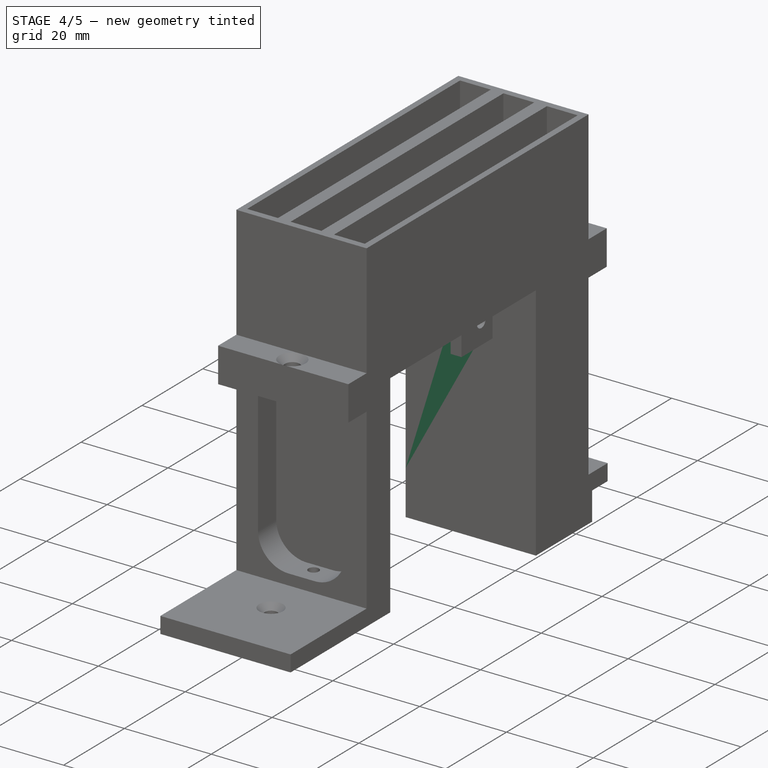
[diagram: stage 4 of 5 — iso view after this stage's code; geometry added in this stage tinted green]
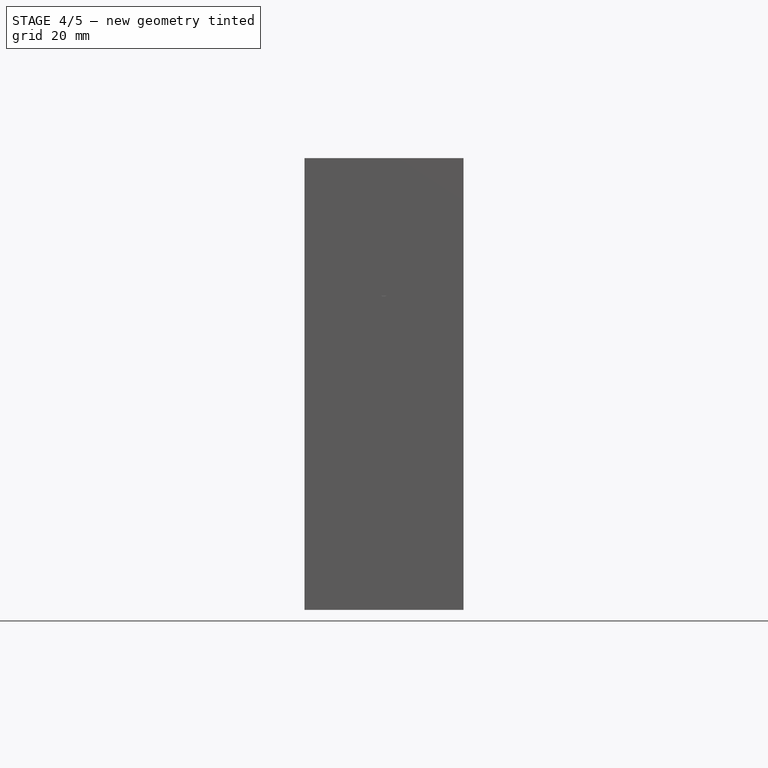
[diagram: stage 4 of 5 — front view after this stage's code; geometry added in this stage tinted green]
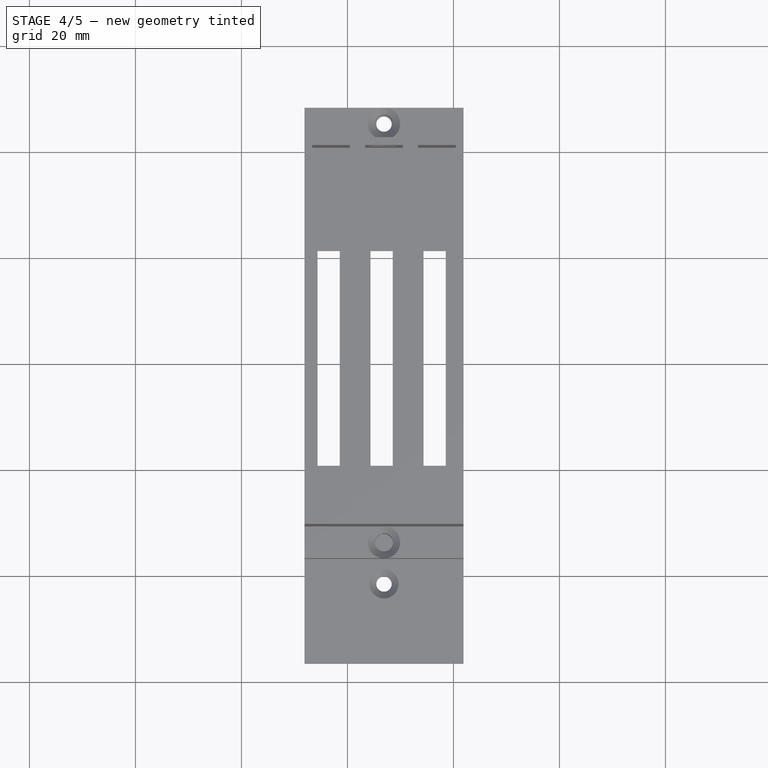
[diagram: stage 4 of 5 — top view after this stage's code; geometry added in this stage tinted green]
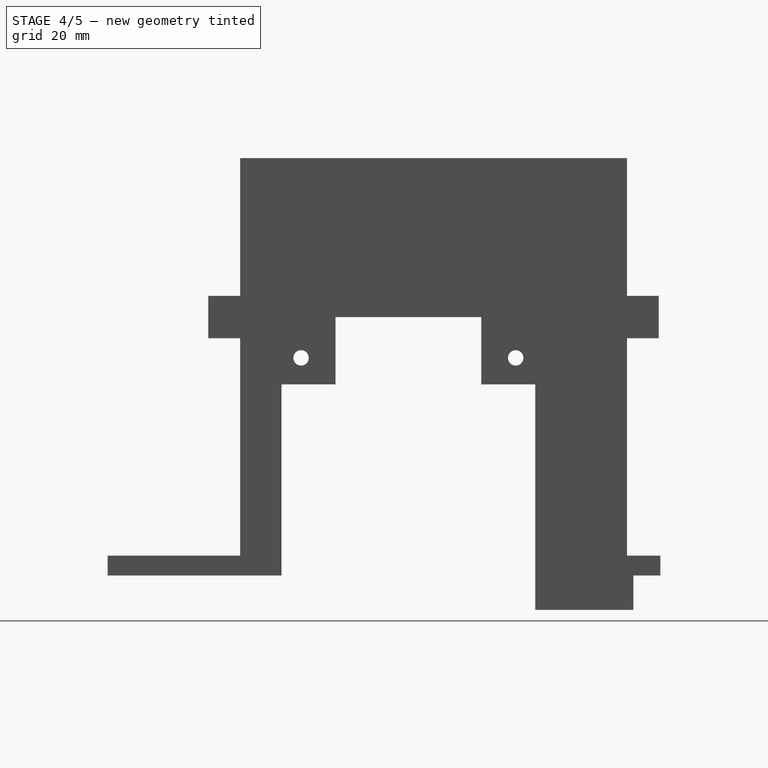
[diagram: stage 4 of 5 — right view after this stage's code; geometry added in this stage tinted green]
FEATURE [Sketcher::SketchObject] Sketch017
  ArcFitTolerance = 1e-06
  AttachmentSupport = -> [Hole005]
  ExternalGeometry = -> [Hole005]
  FullyConstrained = true
  MakeInternals = false
  MapMode = 5
  Placement = pos=(0,161.395,0) rot=(0,0.707107,0.707107;3.14159rad)
  sketch-geometry (4):
    g0: LineSegment StartX=3.0978 StartY=-4 StartZ=0 EndX=3.0978 EndY=-42.5 EndZ=0
    g1: LineSegment StartX=3.0978 StartY=-42.5 StartZ=0 EndX=23.0978 EndY=-42.5 EndZ=0
    g2: LineSegment StartX=23.0978 StartY=-42.5 StartZ=0 EndX=23.0978 EndY=-4 EndZ=0
    g3: LineSegment StartX=23.0978 StartY=-4 StartZ=0 EndX=3.0978 EndY=-4 EndZ=0
  constraints (11):
    c: Coincident(g0,g1)
    c: Coincident(g1,g2)
    c: Coincident(g2,g3)
    c: Coincident(g3,g0)
    c: Vertical(g0)
    c: Vertical(g2)
    c: Horizontal(g1)
    c: Horizontal(g3)
    c: Coincident(g-5,g2)
    c: PointOnObject(g-3,g1)
    c: PointOnObject(g-6,g0)
FEATURE [PartDesign::Pocket] Pocket003
  BaseFeature = -> Hole005
  Direction = (0,-1,2e-16)
  Length = 13
  Length2 = 5
  Profile = -> Sketch017
  ReferenceAxis = -> Sketch017 [N_Axis]
  Refine = true
  Suppressed = false
  Type = 0
FEATURE [PartDesign::Fillet] Fillet001
  Base = -> Pocket003 [Edge215,Edge218]
  BaseFeature = -> Pocket003
  Radius = 7
  Refine = true
  SupportTransform = false
  Suppressed = false
  UseAllEdges = false
FEATURE [Sketcher::SketchObject] Sketch018
  ArcFitTolerance = 1e-06
  AttachmentSupport = -> [Fillet001]
  ExternalGeometry = -> [Fillet001]
  FullyConstrained = false
  MakeInternals = false
  MapMode = 5
  Placement = pos=(-28.0978,0,0) rot=(0.57735,-0.57735,-0.57735;2.0944rad)
  sketch-geometry (3):
    g0: GeomPoint [constr] X=-167.395 Y=-2e-16 Z=0
    g1: LineSegment StartX=-203.65 StartY=-45 StartZ=0 EndX=-39.1389 EndY=-45 EndZ=0
    g2: LineSegment StartX=-38.7223 StartY=-4e-16 StartZ=0 EndX=-210.757 EndY=-4e-16 EndZ=0
  constraints (5):
    c: Symmetric(g-3,g-3,g0)
    c: Horizontal(g1)
    c: Horizontal(g2)
    c: PointOnObject(g0,g2)
    c: PointOnObject(g-4,g1)
FEATURE [Sketcher::SketchObject] Sketch019
  ArcFitTolerance = 1e-06
  AttachmentSupport = -> [Fillet001]
  ExternalGeometry = -> [Fillet001]
  FullyConstrained = true
  MakeInternals = false
  MapMode = 5
  Placement = pos=(0,96.3951,0) rot=(0,0.707107,0.707107;3.14159rad)
  sketch-geometry (16):
    g0: LineSegment StartX=28.0978 StartY=0 StartZ=0 EndX=20.5978 EndY=0 EndZ=0
    g1: LineSegment StartX=20.5978 StartY=0 StartZ=0 EndX=20.5978 EndY=-45 EndZ=0
    g2: LineSegment StartX=20.5978 StartY=-45 StartZ=0 EndX=18.0978 EndY=-45 EndZ=0
    g3: LineSegment StartX=18.0978 StartY=-45 StartZ=0 EndX=18.0978 EndY=0 EndZ=0
    g4: LineSegment StartX=18.0978 StartY=0 StartZ=0 EndX=10.5978 EndY=0 EndZ=0
    g5: LineSegment StartX=10.5978 StartY=0 StartZ=0 EndX=10.5978 EndY=-45 EndZ=0
    g6: LineSegment StartX=10.5978 StartY=-45 StartZ=0 EndX=8.0978 EndY=-45 EndZ=0
    g7: LineSegment StartX=8.0978 StartY=-45 StartZ=0 EndX=8.0978 EndY=0 EndZ=0
    g8: LineSegment StartX=8.0978 StartY=0 StartZ=0 EndX=-1.9022 EndY=0 EndZ=0
    g9: LineSegment StartX=-1.9022 StartY=0 StartZ=0 EndX=-1.9022 EndY=-48.75 EndZ=0
    g10: LineSegment StartX=-1.9022 StartY=-48.75 StartZ=0 EndX=8.0978 EndY=-48.75 EndZ=0
    g11: LineSegment StartX=8.0978 StartY=-48.75 StartZ=0 EndX=8.0978 EndY=-47.65 EndZ=0
    g12: LineSegment StartX=8.0978 StartY=-47.65 StartZ=0 EndX=18.0978 EndY=-47.65 EndZ=0
    g13: LineSegment StartX=18.0978 StartY=-47.65 StartZ=0 EndX=18.0978 EndY=-48.75 EndZ=0
    g14: LineSegment StartX=18.0978 StartY=-48.75 StartZ=0 EndX=28.0978 EndY=-48.75 EndZ=0
    g15: LineSegment StartX=28.0978 StartY=-48.75 StartZ=0 EndX=28.0978 EndY=0 EndZ=0
  constraints (32):
    c: Coincident(g-3,g0)
    c: Coincident(g0,g-3)
    c: Coincident(g0,g1)
    c: Coincident(g1,g-9)
    c: Coincident(g1,g2)
    c: Coincident(g2,g-9)
    c: Coincident(g2,g3)
    c: Coincident(g3,g-5)
    c: Coincident(g3,g4)
    c: Coincident(g4,g-5)
    c: Coincident(g4,g5)
    c: Coincident(g5,g-10)
    c: Coincident(g5,g6)
    c: Coincident(g6,g-10)
    c: Coincident(g6,g7)
    c: Coincident(g7,g-4)
    c: Coincident(g7,g8)
    c: Coincident(g8,g-4)
    c: Coincident(g8,g9)
    c: Coincident(g9,g-8)
    c: Coincident(g9,g10)
    c: Coincident(g10,g-8)
    c: Coincident(g10,g11)
    c: Coincident(g11,g-7)
    c: Coincident(g11,g12)
    c: Coincident(g12,g-7)
    c: Coincident(g12,g13)
    c: Coincident(g13,g-6)
    c: Coincident(g13,g14)
    c: Coincident(g14,g-6)
    c: Coincident(g14,g15)
    c: Coincident(g15,g0)
FEATURE [PartDesign::Pocket] Pocket004
  BaseFeature = -> Fillet001
  Direction = (0,-1,2e-16)
  Length = 0.2
  Length2 = 5
  Profile = -> Sketch019
  ReferenceAxis = -> Sketch019 [N_Axis]
  Refine = true
  Suppressed = false
  Type = 0
FEATURE [Sketcher::SketchObject] Sketch020
  ArcFitTolerance = 1e-06
  AttachmentSupport = -> [Pocket004]
  ExternalGeometry = -> [Pocket004]
  FullyConstrained = true
  MakeInternals = false
  MapMode = 5
  Placement = pos=(0,143.895,0) rot=(1,0,0;1.5708rad)
  sketch-geometry (12):
    g0: LineSegment StartX=1.9022 StartY=0 StartZ=0 EndX=-8.0978 EndY=0 EndZ=0
    g1: LineSegment StartX=-8.0978 StartY=0 StartZ=0 EndX=-8.0978 EndY=-45 EndZ=0
    g2: LineSegment StartX=-8.0978 StartY=-45 StartZ=0 EndX=-10.5978 EndY=-45 EndZ=0
    g3: LineSegment StartX=-10.5978 StartY=-45 StartZ=0 EndX=-10.5978 EndY=0 EndZ=0
    g4: LineSegment StartX=-10.5978 StartY=0 StartZ=0 EndX=-18.0978 EndY=0 EndZ=0
    g5: LineSegment StartX=-18.0978 StartY=0 StartZ=0 EndX=-18.0978 EndY=-45 EndZ=0
    g6: LineSegment StartX=-18.0978 StartY=-45 StartZ=0 EndX=-20.5978 EndY=-45 EndZ=0
    g7: LineSegment StartX=-20.5978 StartY=-45 StartZ=0 EndX=-20.5978 EndY=0 EndZ=0
    g8: LineSegment StartX=-20.5978 StartY=0 StartZ=0 EndX=-28.0978 EndY=0 EndZ=0
    g9: LineSegment StartX=-28.0978 StartY=0 StartZ=0 EndX=-28.0978 EndY=-55.25 EndZ=0
    g10: LineSegment StartX=-28.0978 StartY=-55.25 StartZ=0 EndX=1.9022 EndY=-55.25 EndZ=0
    g11: LineSegment StartX=1.9022 StartY=-55.25 StartZ=0 EndX=1.9022 EndY=0 EndZ=0
  constraints (24):
    c: Coincident(g-3,g0)
    c: Coincident(g0,g-3)
    c: Coincident(g0,g1)
    c: Coincident(g1,g-6)
    c: Coincident(g1,g2)
    c: Coincident(g2,g-6)
    c: Coincident(g2,g3)
    c: Coincident(g3,g-4)
    c: Coincident(g3,g4)
    c: Coincident(g4,g-4)
    c: Coincident(g4,g5)
    c: Coincident(g5,g-7)
    c: Coincident(g5,g6)
    c: Coincident(g6,g-7)
    c: Coincident(g6,g7)
    c: Coincident(g7,g-5)
    c: Coincident(g7,g8)
    c: Coincident(g8,g-5)
    c: Coincident(g8,g9)
    c: Coincident(g9,g-8)
    c: Coincident(g9,g10)
    c: Coincident(g10,g-8)
    c: Coincident(g10,g11)
    c: Coincident(g11,g0)
FEATURE [PartDesign::Pocket] Pocket005
  BaseFeature = -> Pocket004
  Direction = (0,1,-2e-16)
  Length = 0.2
  Length2 = 5
  Profile = -> Sketch020
  ReferenceAxis = -> Sketch020 [N_Axis]
  Refine = true
  Suppressed = false
  Type = 0
FEATURE [Sketcher::SketchObject] Sketch021
  ArcFitTolerance = 1e-06
  AttachmentSupport = -> [Pocket005]
  ExternalGeometry = -> [Pocket005]
  FullyConstrained = true
  MakeInternals = false
  MapMode = 5
  Placement = pos=(-20.5978,0,0) rot=(0.57735,-0.57735,-0.57735;2.0944rad)
  sketch-geometry (4):
    g0: LineSegment StartX=-144.095 StartY=-12.7 StartZ=0 EndX=-144.095 EndY=-45 EndZ=0
    g1: LineSegment StartX=-144.095 StartY=-45 StartZ=0 EndX=-96.1951 EndY=-45 EndZ=0
    g2: LineSegment StartX=-96.1951 StartY=-45 StartZ=0 EndX=-96.1951 EndY=-12.7 EndZ=0
    g3: LineSegment StartX=-96.1951 StartY=-12.7 StartZ=0 EndX=-144.095 EndY=-12.7 EndZ=0
  constraints (10):
    c: Coincident(g0,g1)
    c: Coincident(g1,g2)
    c: Coincident(g2,g3)
    c: Coincident(g3,g0)
    c: Vertical(g0)
    c: Vertical(g2)
    c: Horizontal(g3)
    c: Coincident(g0,g-3)
    c: Coincident(g-5,g1)
    c: DistanceY(g2,g-4) = 5
FEATURE [PartDesign::Pocket] Pocket006
  BaseFeature = -> Pocket005
  Direction = (1,0,0)
  Length = 5
  Length2 = 5
  Profile = -> Sketch021
  ReferenceAxis = -> Sketch021 [N_Axis]
  Refine = true
  Suppressed = false
  Type = 1
FEATURE [PartDesign::Body] Body
  AllowCompound = false
  Group = -> [Sketch,Pad,Sketch001,Pad001,Sketch002,Pad002,LinearPattern,Sketch004,Pad003,Sketch005,Hole001,Sketch006,Hole002,Sketch003,Hole,Sketch007,Pocket,Sketch011,Pocket001,Sketch012,Pad004,Sketch013,Hole003,Sketch014,Hole004,Sketch015,Pocket002,Fillet,Sketch016,Hole005,Sketch017,Pocket003,Fillet001,Sketch019,Pocket004,Sketch020,Pocket005,Sketch021,Pocket006,Sketch018]
  Origin = -> Origin
  Tip = -> Pocket006
FEATURE [Part::Extrusion] Extrude
  Base = -> Sketch018
  Dir = (-1,0,0)
  DirMode = 2
  FaceMakerClass = Part::FaceMakerBullseye
  FaceMakerMode = 3
  LengthFwd = 30
  LengthRev = 30
  Solid = false
  Symmetric = false
FEATURE [Part::FeaturePython] Slice  # WARN: FeaturePython — macro-defined, semantics opaque (R4)
  Base = -> Pocket006
  Mode = 1
  Tolerance = 0
  Tools = -> [Extrude]
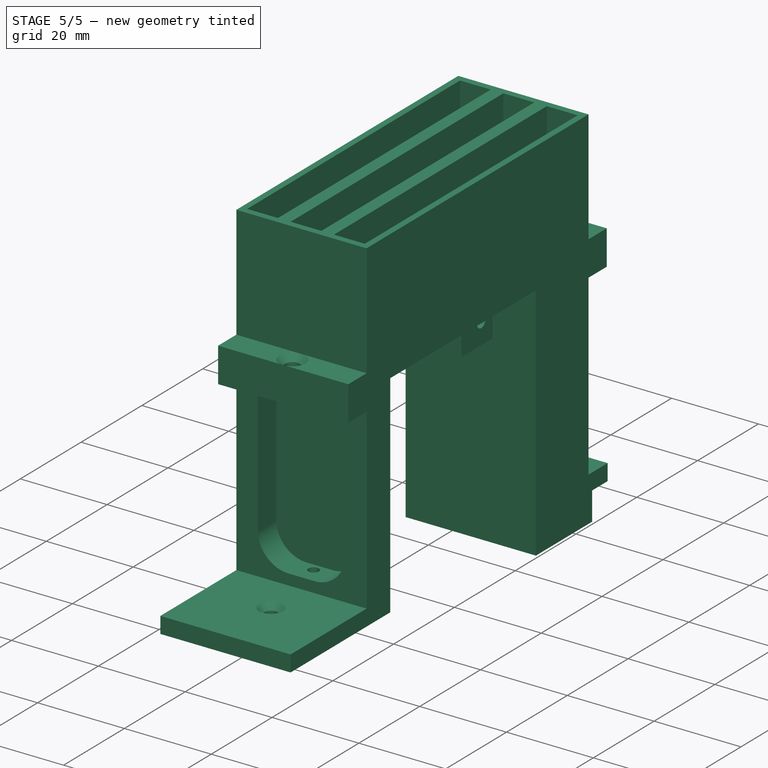
[diagram: stage 5 of 5 — iso view after this stage's code; geometry added in this stage tinted green]
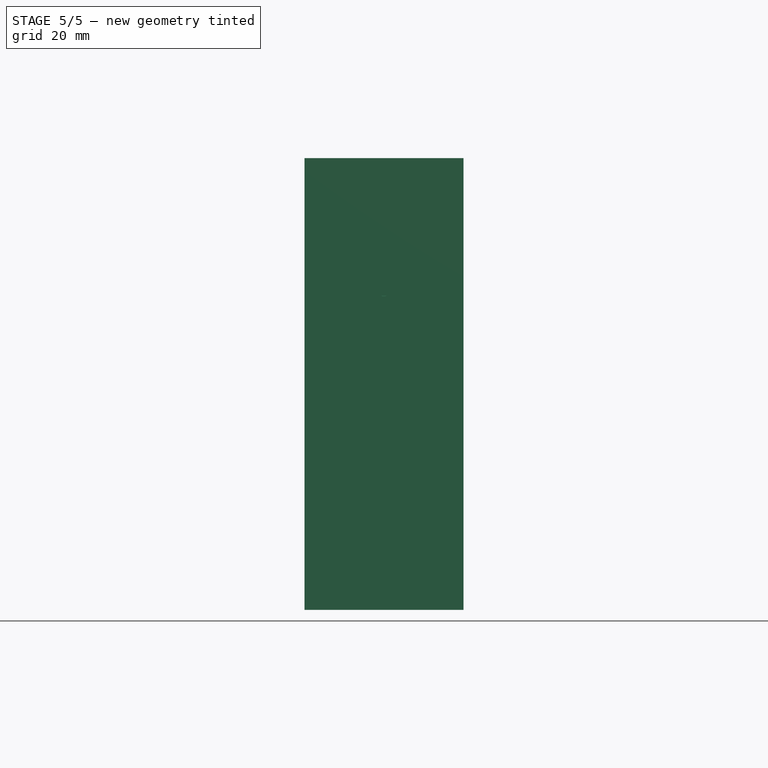
[diagram: stage 5 of 5 — front view after this stage's code; geometry added in this stage tinted green]
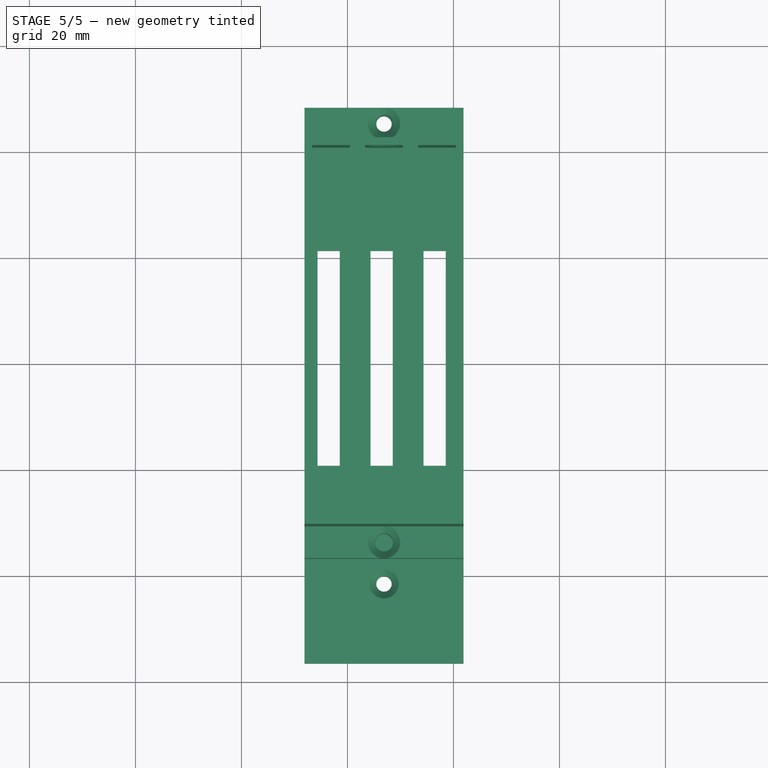
[diagram: stage 5 of 5 — top view after this stage's code; geometry added in this stage tinted green]
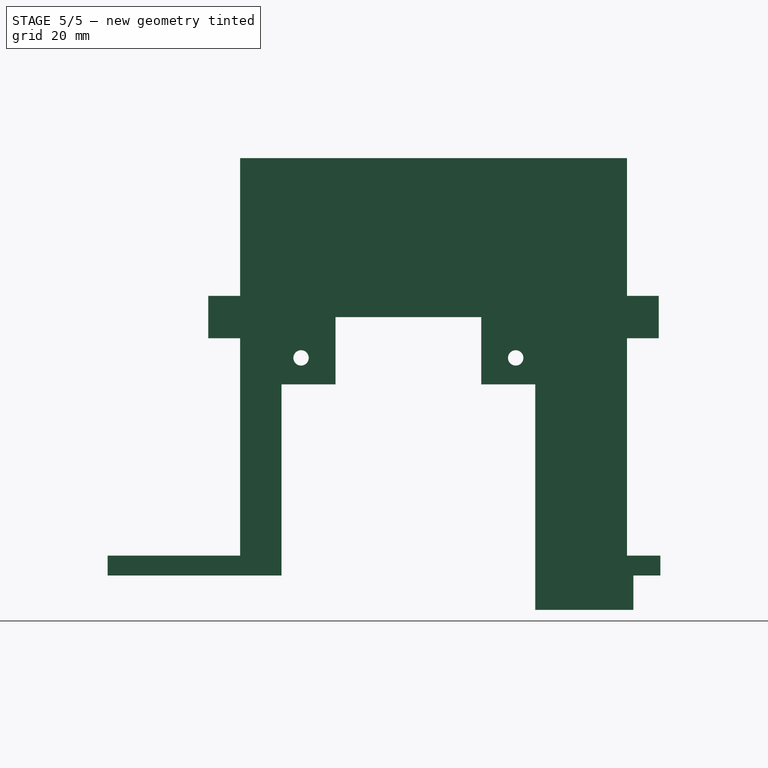
[diagram: stage 5 of 5 — right view after this stage's code; geometry added in this stage tinted green]
FEATURE [Part::FeaturePython] Slice_child0  label="Slice.0"  # WARN: FeaturePython — macro-defined, semantics opaque (R4)
  Base = -> Slice
  FilterType = 1
  Invert = false
  OverrideMaxVal = 0
  WindowFrom = 80
  WindowTo = 100
  items = 0
FEATURE [Part::FeaturePython] Slice_child1  label="Slice.1"  # WARN: FeaturePython — macro-defined, semantics opaque (R4)
  Base = -> Slice
  FilterType = 1
  Invert = false
  OverrideMaxVal = 0
  WindowFrom = 80
  WindowTo = 100
  items = 1
FEATURE [Part::FeaturePython] Slice_child2  label="Slice.2"  # WARN: FeaturePython — macro-defined, semantics opaque (R4)
  Base = -> Slice
  FilterType = 1
  Invert = false
  OverrideMaxVal = 0
  WindowFrom = 80
  WindowTo = 100
  items = 2
FEATURE [Part::FeaturePython] Slice_child3  label="Slice.3"  # WARN: FeaturePython — macro-defined, semantics opaque (R4)
  Base = -> Slice
  FilterType = 1
  Invert = false
  OverrideMaxVal = 0
  WindowFrom = 80
  WindowTo = 100
  items = 3
FEATURE [Part::FeaturePython] Slice_child4  label="Slice.4"  # WARN: FeaturePython — macro-defined, semantics opaque (R4)
  Base = -> Slice
  FilterType = 1
  Invert = false
  OverrideMaxVal = 0
  WindowFrom = 80
  WindowTo = 100
  items = 4
FEATURE [App::DocumentObjectGroup] GrExplode_Slice  label="Exploded Slice"
  Group = -> [Slice_child0,Slice_child1,Slice_child2,Slice_child3,Slice_child4]
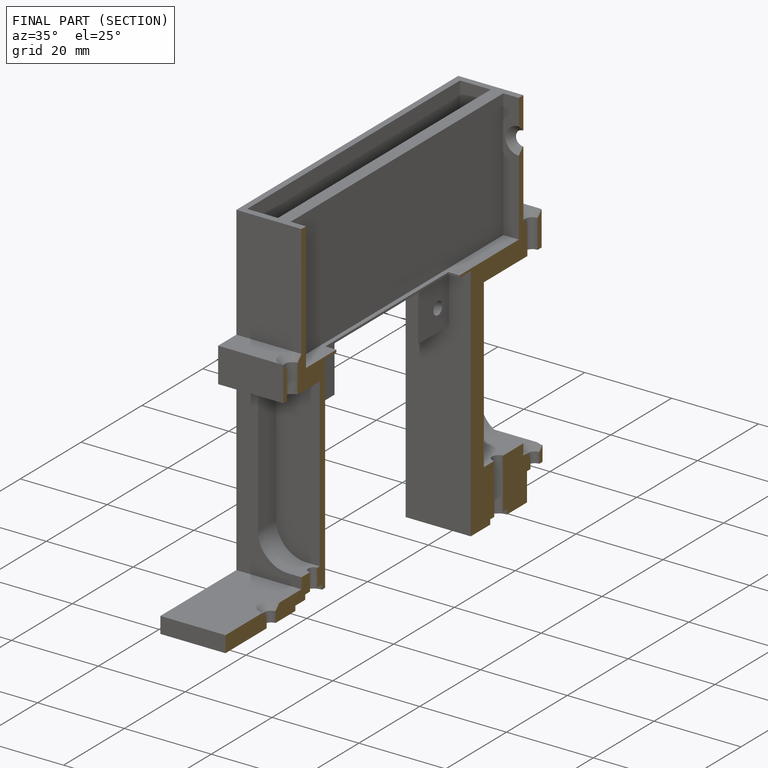
[diagram: finished part — half-section view (interior)]
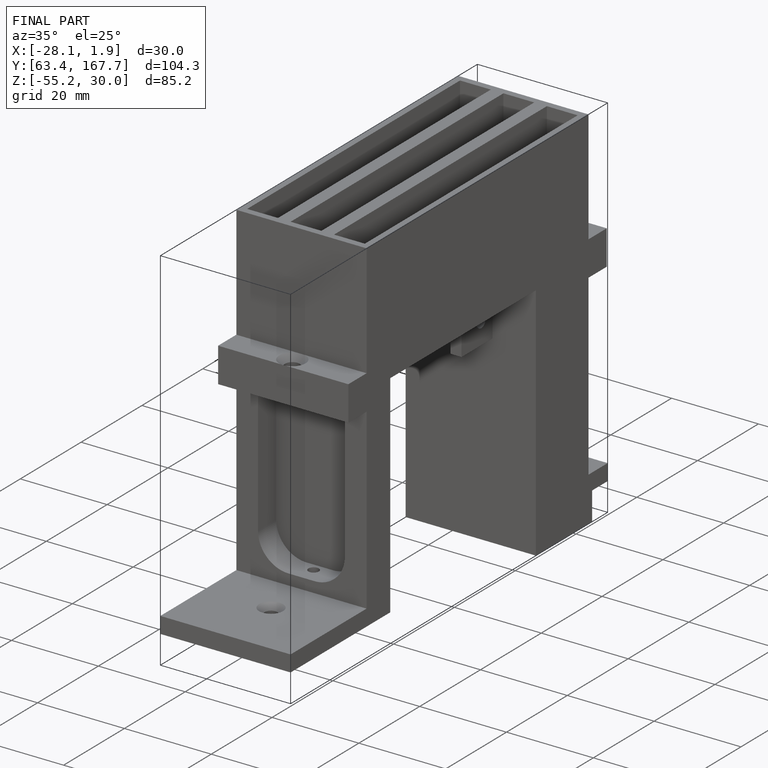
[diagram: finished part — iso view with bounding-box wireframe]
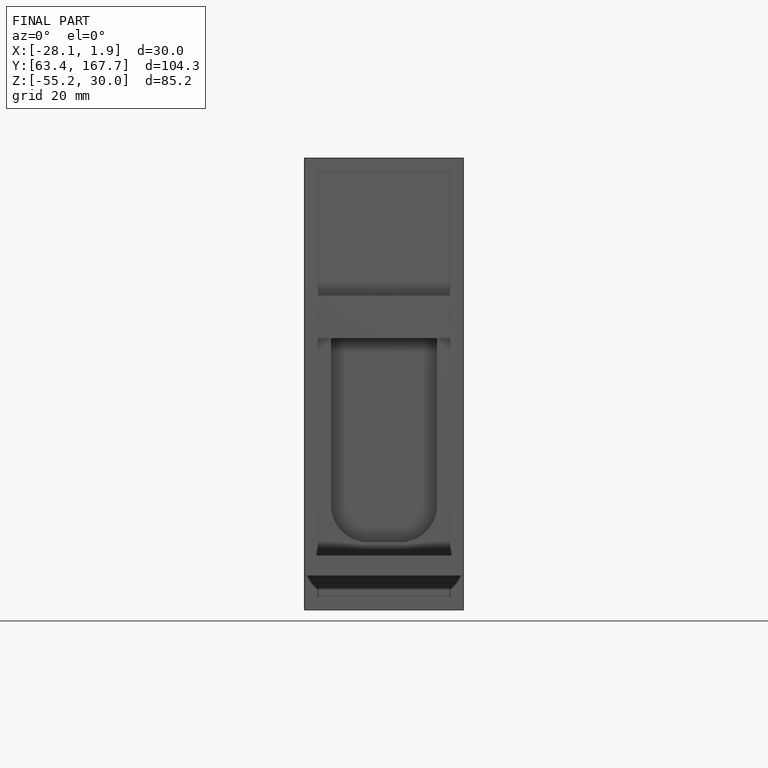
[diagram: finished part — front view with bounding-box wireframe]
